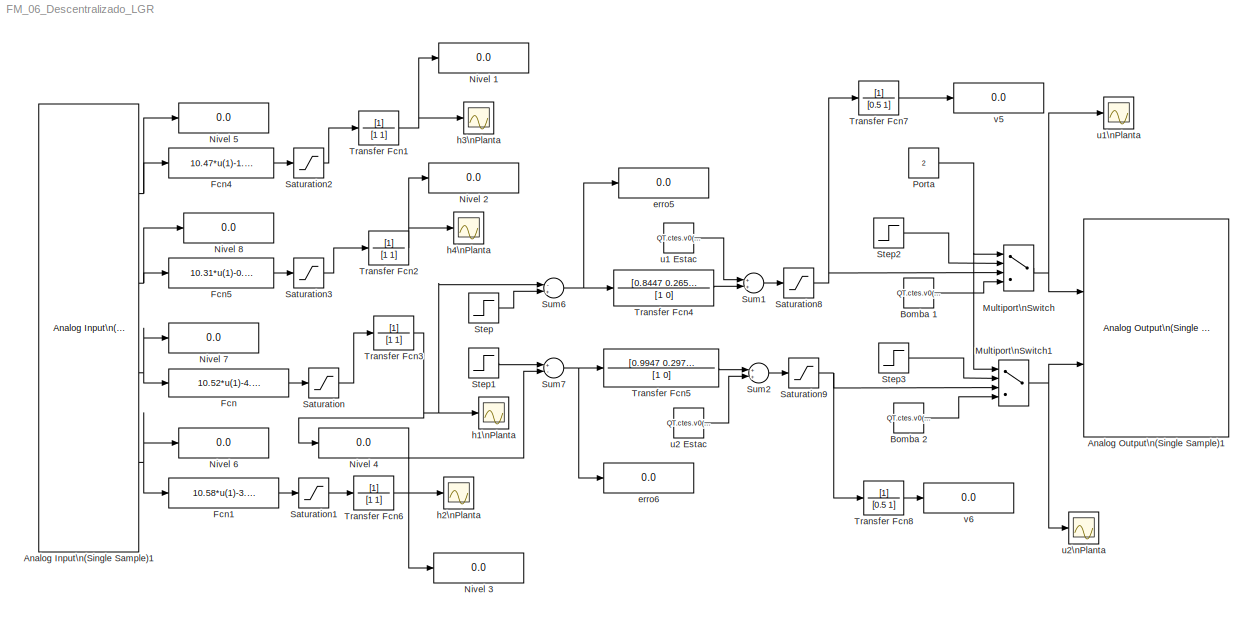
MODEL FM_06_Descentralizado_LGR
KIND model
BLOCK [Reference] Analog Input\n(Single Sample)1  REF=daqlib/Analog Input\n(Single Sample)
  BlockSampleTime = 10e-3
  Channels = 1$0$$5$#1$1$$5$#1$2$$5$#1$3$$5$#
  Device = nidaq Dev1 (USB-6008)
  DeviceMenu = nidaq Dev1 (USB-6008)
  DialogController = daqcreatedialog
  DialogControllerArgs = DataTag0
  InputType = Differential
  NChannelsSelected = 4
  NPorts = 1 per hardware channel
  ObjConstructor = analoginput('nidaq','Dev1')
  Ports = [0, 4]
  SourceBlock = daqlib/Analog Input\n(Single Sample)
  SourceType = Analog Input (Single Sample)
BLOCK [Reference] Analog Output\n(Single Sample)1  REF=daqlib/Analog Output\n(Single Sample)
  Channels = 1$0$$1$0$#1$1$$1$0$#
  Device = nidaq Dev1 (USB-6008)
  DeviceMenu = nidaq Dev1 (USB-6008)
  DialogController = daqcreatedialog
  DialogControllerArgs = DataTag1
  NChannelsSelected = 2
  NPorts = 1 per hardware channel
  ObjConstructor = analogoutput('nidaq','Dev1')
  Ports = [2]
  SourceBlock = daqlib/Analog Output\n(Single Sample)
  SourceType = Analog Output (Single Sample)
BLOCK [Constant] Bomba 1
  Value = QT.ctes.v0(1)
BLOCK [Constant] Bomba 2
  Value = QT.ctes.v0(2)
BLOCK [Fcn] Fcn
  Expr = 10.52*u(1)-4.105
  SampleTime = 10e-3
BLOCK [Fcn] Fcn1
  Expr = 10.58*u(1)-3.069
BLOCK [Fcn] Fcn4
  Expr = 10.47*u(1)-1.885
BLOCK [Fcn] Fcn5
  Expr = 10.31*u(1)-0.52
BLOCK [MultiPortSwitch] Multiport\nSwitch
  InputSameDT = off
  OutDataType = sfix(16)
  OutScaling = 2^0
  Ports = [4, 1]
  SaturateOnIntegerOverflow = off
BLOCK [MultiPortSwitch] Multiport\nSwitch1
  InputSameDT = off
  OutDataType = sfix(16)
  OutScaling = 2^0
  Ports = [4, 1]
  SaturateOnIntegerOverflow = off
BLOCK [Display] Nivel 1
  Decimation = 1
  Lockdown = off
  Ports = [1]
BLOCK [Display] Nivel 2
  Decimation = 1
  Lockdown = off
  Ports = [1]
BLOCK [Display] Nivel 3
  Decimation = 1
  Lockdown = off
  Ports = [1]
BLOCK [Display] Nivel 4
  Decimation = 1
  Lockdown = off
  Ports = [1]
BLOCK [Display] Nivel 5
  Decimation = 1
  Lockdown = off
  Ports = [1]
BLOCK [Display] Nivel 6
  Decimation = 1
  Lockdown = off
  Ports = [1]
BLOCK [Display] Nivel 7
  Decimation = 1
  Lockdown = off
  Ports = [1]
BLOCK [Display] Nivel 8
  Decimation = 1
  Lockdown = off
  Ports = [1]
BLOCK [Constant] Porta
  Value = 2
BLOCK [Saturate] Saturation
  LowerLimit = 0
  SampleTime = 10e-3
  UpperLimit = 23
BLOCK [Saturate] Saturation1
  LowerLimit = 0
  UpperLimit = 23
BLOCK [Saturate] Saturation2
  LowerLimit = 0
  UpperLimit = 23
BLOCK [Saturate] Saturation3
  LowerLimit = 0
  UpperLimit = 23
BLOCK [Saturate] Saturation8
  LowerLimit = 0
  SampleTime = 10e-3
  UpperLimit = 0.7*5
BLOCK [Saturate] Saturation9
  LowerLimit = 0
  SampleTime = 10e-3
  UpperLimit = 0.7*5
BLOCK [Step] Step
  After = QT.ctes.h0(1)+1
  Before = QT.ctes.h0(1)
  Time = 100
BLOCK [Step] Step1
  After = QT.ctes.h0(2)+1
  Before = QT.ctes.h0(2)
  Time = 200
BLOCK [Step] Step2
  After = QT.ctes.v0(1)
  Before = QT.ctes.v0(1)
  SampleTime = 10e-3
  Time = 50
BLOCK [Step] Step3
  After = QT.ctes.v0(2)
  Before = QT.ctes.v0(2)
  Time = 50
BLOCK [Sum] Sum1
  InputSameDT = off
  OutDataType = sfix(16)
  OutDataTypeMode = Inherit via internal rule
  OutDataTypeStr = Inherit: Inherit via internal rule
  OutScaling = 2^0
  Ports = [2, 1]
  SaturateOnIntegerOverflow = off
BLOCK [Sum] Sum2
  InputSameDT = off
  OutDataType = sfix(16)
  OutDataTypeMode = Inherit via internal rule
  OutDataTypeStr = Inherit: Inherit via internal rule
  OutScaling = 2^0
  Ports = [2, 1]
  SaturateOnIntegerOverflow = off
BLOCK [Sum] Sum6
  InputSameDT = off
  Inputs = -+
  OutDataType = sfix(16)
  OutDataTypeMode = Inherit via internal rule
  OutDataTypeStr = Inherit: Inherit via internal rule
  OutScaling = 2^0
  Ports = [2, 1]
  SaturateOnIntegerOverflow = off
BLOCK [Sum] Sum7
  InputSameDT = off
  Inputs = +-
  OutDataType = sfix(16)
  OutDataTypeMode = Inherit via internal rule
  OutDataTypeStr = Inherit: Inherit via internal rule
  OutScaling = 2^0
  Ports = [2, 1]
  SaturateOnIntegerOverflow = off
BLOCK [TransferFcn] Transfer Fcn1
  Denominator = [1 1]
BLOCK [TransferFcn] Transfer Fcn2
  Denominator = [1 1]
BLOCK [TransferFcn] Transfer Fcn3
  Denominator = [1 1]
BLOCK [TransferFcn] Transfer Fcn4
  Denominator = [1 0]
  Numerator = [0.8447 0.2653]
BLOCK [TransferFcn] Transfer Fcn5
  Denominator = [1 0]
  Numerator = [0.9947 0.2974]
BLOCK [TransferFcn] Transfer Fcn6
  Denominator = [1 1]
BLOCK [TransferFcn] Transfer Fcn7
  Denominator = [0.5 1]
BLOCK [TransferFcn] Transfer Fcn8
  Denominator = [0.5 1]
BLOCK [Display] erro5
  Decimation = 1
  Lockdown = off
  Ports = [1]
BLOCK [Display] erro6
  Decimation = 1
  Lockdown = off
  Ports = [1]
BLOCK [Scope] h1\nPlanta
  DataFormat = StructureWithTime
  Floating = off
  LimitDataPoints = off
  NumInputPorts = 1
  Ports = [1]
  SampleInput = on
  SampleTime = 10e-3
  SaveName = h1_real
  SaveToWorkspace = on
  YMax = 10
  YMin = 0
BLOCK [Scope] h2\nPlanta
  DataFormat = StructureWithTime
  Floating = off
  LimitDataPoints = off
  NumInputPorts = 1
  Ports = [1]
  SampleInput = on
  SampleTime = 10e-3
  SaveName = h2_real
  SaveToWorkspace = on
  YMax = 10
  YMin = 0
BLOCK [Scope] h3\nPlanta
  DataFormat = StructureWithTime
  Floating = off
  LimitDataPoints = off
  NumInputPorts = 1
  Ports = [1]
  SampleInput = on
  SampleTime = 10e-3
  SaveName = h3_real
  SaveToWorkspace = on
  TimeRange = 300
  YMax = 10.5
  YMin = 0
BLOCK [Scope] h4\nPlanta
  DataFormat = StructureWithTime
  Floating = off
  LimitDataPoints = off
  NumInputPorts = 1
  Ports = [1]
  SampleInput = on
  SampleTime = 10e-3
  SaveName = h4_real
  SaveToWorkspace = on
  YMax = 17
  YMin = 0
BLOCK [Constant] u1 Estac
  Value = QT.ctes.v0(1)
BLOCK [Scope] u1\nPlanta
  DataFormat = StructureWithTime
  Floating = off
  LimitDataPoints = off
  NumInputPorts = 1
  Ports = [1]
  SampleInput = on
  SampleTime = 10e-3
  SaveName = u1_real
  SaveToWorkspace = on
  YMax = 3.5
  YMin = 1.2
BLOCK [Constant] u2 Estac
  Value = QT.ctes.v0(2)
BLOCK [Scope] u2\nPlanta
  DataFormat = StructureWithTime
  Floating = off
  LimitDataPoints = off
  NumInputPorts = 1
  Ports = [1]
  SampleInput = on
  SampleTime = 10e-3
  SaveName = u2_real
  SaveToWorkspace = on
  YMax = 3.5
  YMin = 1.7
BLOCK [Display] v5
  Decimation = 1
  Lockdown = off
  Ports = [1]
BLOCK [Display] v6
  Decimation = 1
  Lockdown = off
  Ports = [1]
NET Analog Input\n(Single Sample)1:1 -> Fcn4:1, Nivel 5:1
NET Analog Input\n(Single Sample)1:2 -> Fcn5:1, Nivel 8:1
NET Analog Input\n(Single Sample)1:3 -> Fcn:1, Nivel 7:1
NET Analog Input\n(Single Sample)1:4 -> Fcn1:1, Nivel 6:1
LINE Bomba 1:1 -> Multiport\nSwitch:4
LINE Bomba 2:1 -> Multiport\nSwitch1:4
LINE Fcn1:1 -> Saturation1:1
LINE Fcn4:1 -> Saturation2:1
LINE Fcn5:1 -> Saturation3:1
LINE Fcn:1 -> Saturation:1
NET Multiport\nSwitch1:1 -> Analog Output\n(Single Sample)1:2, u2\nPlanta:1
NET Multiport\nSwitch:1 -> Analog Output\n(Single Sample)1:1, u1\nPlanta:1
NET Porta:1 -> Multiport\nSwitch1:1, Multiport\nSwitch:1
LINE Saturation1:1 -> Transfer Fcn6:1
LINE Saturation2:1 -> Transfer Fcn1:1
LINE Saturation3:1 -> Transfer Fcn2:1
NET Saturation8:1 -> Multiport\nSwitch:3, Transfer Fcn7:1
NET Saturation9:1 -> Multiport\nSwitch1:3, Transfer Fcn8:1
LINE Saturation:1 -> Transfer Fcn3:1
LINE Step1:1 -> Sum7:1
LINE Step2:1 -> Multiport\nSwitch:2
LINE Step3:1 -> Multiport\nSwitch1:2
LINE Step:1 -> Sum6:2
LINE Sum1:1 -> Saturation8:1
LINE Sum2:1 -> Saturation9:1
NET Sum6:1 -> Transfer Fcn4:1, erro5:1
NET Sum7:1 -> Transfer Fcn5:1, erro6:1
NET Transfer Fcn1:1 -> Nivel 1:1, h3\nPlanta:1
NET Transfer Fcn2:1 -> Nivel 2:1, h4\nPlanta:1
NET Transfer Fcn3:1 -> Nivel 4:1, Sum6:1, h1\nPlanta:1
LINE Transfer Fcn4:1 -> Sum1:2
LINE Transfer Fcn5:1 -> Sum2:1
NET Transfer Fcn6:1 -> Nivel 3:1, Sum7:2, h2\nPlanta:1
LINE Transfer Fcn7:1 -> v5:1
LINE Transfer Fcn8:1 -> v6:1
LINE u1 Estac:1 -> Sum1:1
LINE u2 Estac:1 -> Sum2:2
note: NET lines group one-source signal fan-out (src -> all destinations, sorted); 1:1 wires keep LINE
